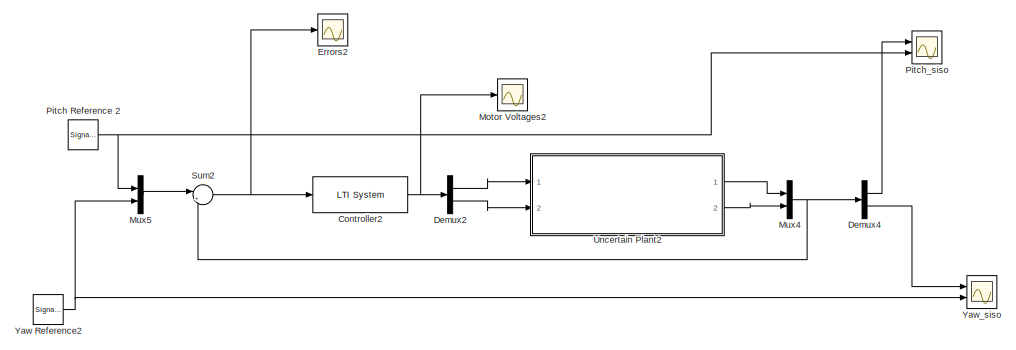
[diagram: root canvas - part 1/2, top right region]
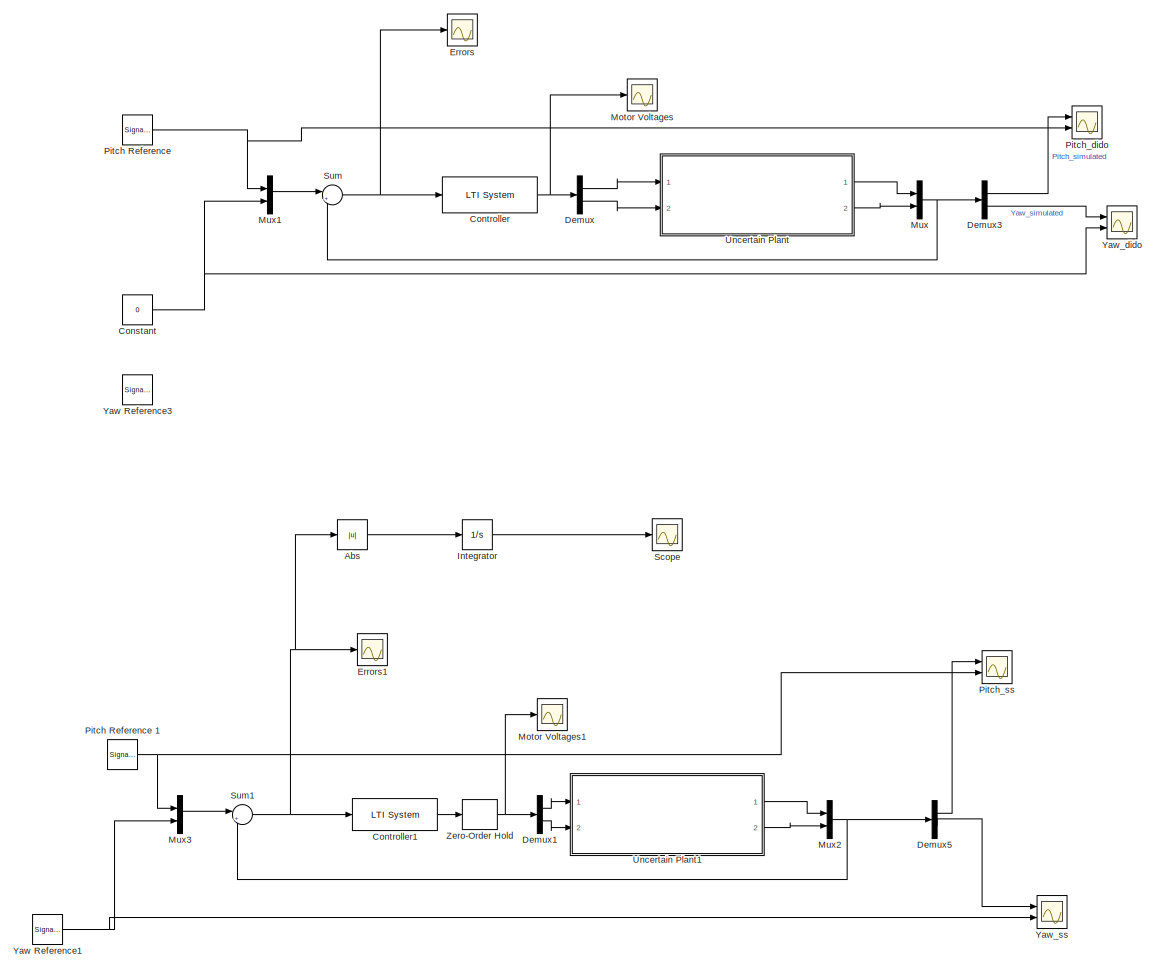
[diagram: root canvas - part 2/2, left side, full height]
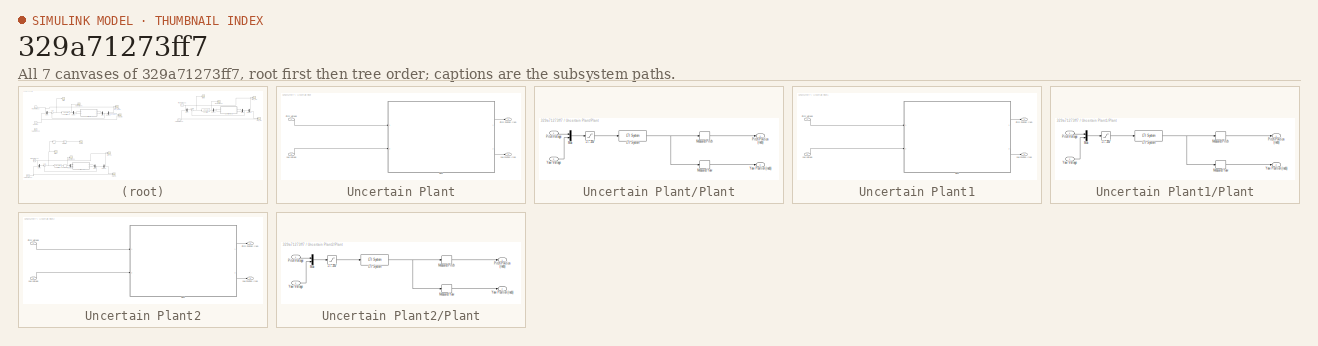
[diagram: thumbnail index - all 7 canvases of the model, root first then tree order]
MODEL slx_329a71273ff7
KIND model
CONFIG AbsTol = auto
CONFIG EnableMultiTasking = off
CONFIG FixedStep = auto
CONFIG MaxStep = auto
CONFIG MinStep = auto
CONFIG RelTol = 1e-3
CONFIG SampleTimeConstraint = Unconstrained
CONFIG Solver = VariableStepAuto
CONFIG SolverName = VariableStepAuto
CONFIG StartTime = 0.0
CONFIG StopTime = 60
BLOCK [Abs] Abs
  Commented = on
  SaturateOnIntegerOverflow = off
BLOCK [Constant] Constant
  Value = 0
BLOCK [Reference] Controller  REF=cstblocks/LTI System
  Ports = [1, 1]
  SourceBlock = cstblocks/LTI System
  SourceProductBaseCode = CT
  SourceProductName = Control System Toolbox
  SourceType = LTI Block
BLOCK [Reference] Controller1  REF=cstblocks/LTI System
  Commented = on
  Ports = [1, 1]
  SourceBlock = cstblocks/LTI System
  SourceProductBaseCode = CT
  SourceProductName = Control System Toolbox
  SourceType = LTI Block
BLOCK [Reference] Controller2  REF=cstblocks/LTI System
  Commented = on
  Ports = [1, 1]
  SourceBlock = cstblocks/LTI System
  SourceProductBaseCode = CT
  SourceProductName = Control System Toolbox
  SourceType = LTI Block
BLOCK [Demux] Demux
  DisplayOption = bar
  Outputs = 2
  Ports = [1, 2]
BLOCK [Demux] Demux1
  Commented = on
  DisplayOption = bar
  Outputs = 2
  Ports = [1, 2]
BLOCK [Demux] Demux2
  Commented = on
  DisplayOption = bar
  Outputs = 2
  Ports = [1, 2]
BLOCK [Demux] Demux3
  DisplayOption = bar
  Outputs = 2
  Ports = [1, 2]
BLOCK [Demux] Demux4
  Commented = on
  DisplayOption = bar
  Outputs = 2
  Ports = [1, 2]
BLOCK [Demux] Demux5
  Commented = on
  DisplayOption = bar
  Outputs = 2
  Ports = [1, 2]
BLOCK [Scope] Errors
  NumInputPorts = 1
  Ports = [1]
  ScopeSpecificationString = Simulink.scopes.TimeScopeBlockCfg('CurrentConfiguration', extmgr.ConfigurationSet(extmgr.Configuration('Core','General UI',true),extmgr.Configuration('Core','Source UI',true),extmgr.Configuration('Sources','WiredSimulink',true,'DataLoggingVariableName','Error','DataLogging',true,'DataLoggingSaveFormat','Array'),extmgr.Configuration('Visuals','Time Domain',true,'SerializedDisplays',{struct('MinYLim...<+1445ch>
BLOCK [Scope] Errors1
  Commented = on
  NumInputPorts = 1
  Ports = [1]
  ScopeSpecificationString = Simulink.scopes.TimeScopeBlockCfg('CurrentConfiguration', extmgr.ConfigurationSet(extmgr.Configuration('Core','General UI',true),extmgr.Configuration('Core','Source UI',true),extmgr.Configuration('Sources','WiredSimulink',true,'DataLoggingVariableName','ScopeData2','DataLogging',true,'DataLoggingSaveFormat','Array'),extmgr.Configuration('Visuals','Time Domain',true,'SerializedDisplays',{struct('Mi...<+1452ch>
BLOCK [Scope] Errors2
  Commented = on
  NumInputPorts = 1
  Ports = [1]
  ScopeSpecificationString = Simulink.scopes.TimeScopeBlockCfg('CurrentConfiguration', extmgr.ConfigurationSet(extmgr.Configuration('Core','General UI',true),extmgr.Configuration('Core','Source UI',true),extmgr.Configuration('Sources','WiredSimulink',true,'DataLoggingVariableName','ScopeData7','DataLogging',true,'DataLoggingSaveFormat','Array'),extmgr.Configuration('Visuals','Time Domain',true,'SerializedDisplays',{struct('Mi...<+1450ch>
BLOCK [Integrator] Integrator
  Commented = on
  Ports = [1, 1]
BLOCK [Scope] Motor Voltages
  NumInputPorts = 1
  Ports = [1]
  ScopeSpecificationString = Simulink.scopes.TimeScopeBlockCfg('CurrentConfiguration', extmgr.ConfigurationSet(extmgr.Configuration('Core','General UI',true),extmgr.Configuration('Core','Source UI',true),extmgr.Configuration('Sources','WiredSimulink',true,'DataLogging',true,'DataLoggingVariableName','MotorVolt','DataLoggingSaveFormat','Array'),extmgr.Configuration('Visuals','Time Domain',true,'SerializedDisplays',{struct('Min...<+1518ch>
BLOCK [Scope] Motor Voltages1
  Commented = on
  NumInputPorts = 1
  Ports = [1]
  ScopeSpecificationString = Simulink.scopes.TimeScopeBlockCfg('CurrentConfiguration', extmgr.ConfigurationSet(extmgr.Configuration('Core','General UI',true),extmgr.Configuration('Core','Source UI',true),extmgr.Configuration('Sources','WiredSimulink',true,'DataLogging',true,'DataLoggingVariableName','ScopeData3','DataLoggingSaveFormat','Array'),extmgr.Configuration('Visuals','Time Domain',true,'SerializedDisplays',{struct('Mi...<+1526ch>
BLOCK [Scope] Motor Voltages2
  Commented = on
  NumInputPorts = 1
  Ports = [1]
  ScopeSpecificationString = Simulink.scopes.TimeScopeBlockCfg('CurrentConfiguration', extmgr.ConfigurationSet(extmgr.Configuration('Core','General UI',true),extmgr.Configuration('Core','Source UI',true),extmgr.Configuration('Sources','WiredSimulink',true,'DataLogging',true,'DataLoggingVariableName','ScopeData8','DataLoggingSaveFormat','Array'),extmgr.Configuration('Visuals','Time Domain',true,'SerializedDisplays',{struct('Mi...<+1519ch>
BLOCK [Mux] Mux
  DisplayOption = bar
  Inputs = 2
  Ports = [2, 1]
BLOCK [Mux] Mux1
  DisplayOption = bar
  Inputs = 2
  Ports = [2, 1]
BLOCK [Mux] Mux2
  Commented = on
  DisplayOption = bar
  Inputs = 2
  Ports = [2, 1]
BLOCK [Mux] Mux3
  Commented = on
  DisplayOption = bar
  Inputs = 2
  Ports = [2, 1]
BLOCK [Mux] Mux4
  Commented = on
  DisplayOption = bar
  Inputs = 2
  Ports = [2, 1]
BLOCK [Mux] Mux5
  Commented = on
  DisplayOption = bar
  Inputs = 2
  Ports = [2, 1]
BLOCK [SignalGenerator] Pitch Reference
  Amplitude = pi/6
  Frequency = 0.4
  Ports = [0, 1]
  Units = rad/sec
  WaveForm = square
BLOCK [SignalGenerator] Pitch Reference 1
  Amplitude = pi/6
  Commented = on
  Frequency = 0.4
  Ports = [0, 1]
  Units = rad/sec
  WaveForm = square
BLOCK [SignalGenerator] Pitch Reference 2
  Amplitude = pi/6
  Commented = on
  Frequency = 0.4
  Ports = [0, 1]
  Units = rad/sec
  WaveForm = square
BLOCK [Scope] Pitch_dido
  NumInputPorts = 2
  Ports = [2]
  ScopeSpecificationString = Simulink.scopes.TimeScopeBlockCfg('CurrentConfiguration', extmgr.ConfigurationSet(extmgr.Configuration('Core','General UI',true,'FigureColor',[1 1 1]),extmgr.Configuration('Core','Source UI',true),extmgr.Configuration('Sources','WiredSimulink',true,'DataLoggingVariableName','ScopeData4','DataLogging',true,'DataLoggingSaveFormat','StructureWithTime'),extmgr.Configuration('Visuals','Time Domain',tru...<+1610ch>
BLOCK [Scope] Pitch_siso
  Commented = on
  NumInputPorts = 2
  Ports = [2]
  ScopeSpecificationString = Simulink.scopes.TimeScopeBlockCfg('CurrentConfiguration', extmgr.ConfigurationSet(extmgr.Configuration('Core','General UI',true),extmgr.Configuration('Core','Source UI',true),extmgr.Configuration('Sources','WiredSimulink',true,'DataLoggingVariableName','ScopeData6','DataLogging',true,'DataLoggingSaveFormat','StructureWithTime'),extmgr.Configuration('Visuals','Time Domain',true,'SerializedDisplays'...<+1478ch>
BLOCK [Scope] Pitch_ss
  Commented = on
  NumInputPorts = 2
  Ports = [2]
  ScopeSpecificationString = Simulink.scopes.TimeScopeBlockCfg('CurrentConfiguration', extmgr.ConfigurationSet(extmgr.Configuration('Core','General UI',true),extmgr.Configuration('Core','Source UI',true),extmgr.Configuration('Sources','WiredSimulink',true,'DataLoggingVariableName','ScopeData9','DataLogging',true,'DataLoggingSaveFormat','StructureWithTime'),extmgr.Configuration('Visuals','Time Domain',true,'SerializedDisplays'...<+1474ch>
BLOCK [Scope] Scope
  Commented = on
  NumInputPorts = 1
  Ports = [1]
  ScopeSpecificationString = Simulink.scopes.TimeScopeBlockCfg('CurrentConfiguration', extmgr.ConfigurationSet(extmgr.Configuration('Core','General UI',true),extmgr.Configuration('Core','Source UI',true),extmgr.Configuration('Sources','WiredSimulink',true,'DataLoggingVariableName','ScopeData1'),extmgr.Configuration('Visuals','Time Domain',true,'SerializedDisplays',{struct('MinYLimReal','-3.13389','MaxYLimReal','28.20502','YLa...<+1440ch>
BLOCK [Sum] Sum
  IconShape = round
  InputSameDT = off
  Inputs = |+-
  OutDataTypeStr = Inherit: Inherit via internal rule
  Ports = [2, 1]
  SaturateOnIntegerOverflow = off
BLOCK [Sum] Sum1
  Commented = on
  IconShape = round
  InputSameDT = off
  Inputs = |+-
  OutDataTypeStr = Inherit: Inherit via internal rule
  Ports = [2, 1]
  SaturateOnIntegerOverflow = off
BLOCK [Sum] Sum2
  Commented = on
  IconShape = round
  InputSameDT = off
  Inputs = |+-
  OutDataTypeStr = Inherit: Inherit via internal rule
  Ports = [2, 1]
  SaturateOnIntegerOverflow = off
BLOCK [SubSystem] Uncertain Plant
  Ports = [2, 2]
  RequestExecContextInheritance = off
  Variant = off
BLOCK [Outport] Uncertain Plant/Pitch Position (rad)
  IconDisplay = Port number
BLOCK [Inport] Uncertain Plant/Pitch Voltage
  IconDisplay = Port number
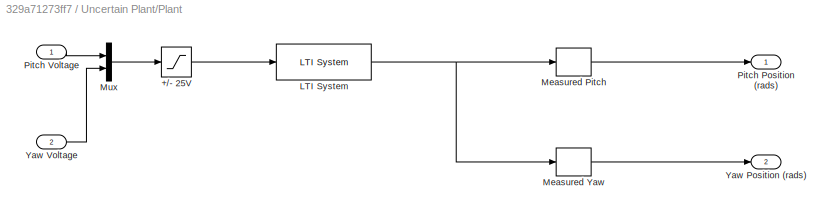
BLOCK [SubSystem] Uncertain Plant/Plant
  Ports = [2, 2]
  RequestExecContextInheritance = off
  Variant = off
BLOCK [Saturate] Uncertain Plant/Plant/+//- 25V
  InputPortMap = u0
  LowerLimit = -25
  Ports = [1, 1]
  UpperLimit = 25
BLOCK [Reference] Uncertain Plant/Plant/LTI System  REF=cstblocks/LTI System
  Ports = [1, 1]
  SourceBlock = cstblocks/LTI System
  SourceProductBaseCode = CT
  SourceProductName = Control System Toolbox
  SourceType = LTI Block
BLOCK [Selector] Uncertain Plant/Plant/Measured Pitch
  IndexOptions = Index vector (dialog)
  Indices = [1]
  InputPortWidth = 2
  OutputSizes = 1
  Ports = [1, 1]
BLOCK [Selector] Uncertain Plant/Plant/Measured Yaw
  IndexOptions = Index vector (dialog)
  Indices = [2]
  InputPortWidth = 2
  OutputSizes = 1
  Ports = [1, 1]
BLOCK [Mux] Uncertain Plant/Plant/Mux
  DisplayOption = bar
  Inputs = 2
  Ports = [2, 1]
BLOCK [Outport] Uncertain Plant/Plant/Pitch Position (rads)
  IconDisplay = Port number
BLOCK [Inport] Uncertain Plant/Plant/Pitch Voltage
  IconDisplay = Port number
BLOCK [Outport] Uncertain Plant/Plant/Yaw Position (rads)
  IconDisplay = Port number
  Port = 2
BLOCK [Inport] Uncertain Plant/Plant/Yaw Voltage
  IconDisplay = Port number
  Port = 2
BLOCK [Outport] Uncertain Plant/Yaw Position (rad)
  IconDisplay = Port number
  Port = 2
BLOCK [Inport] Uncertain Plant/Yaw Voltage
  IconDisplay = Port number
  Port = 2
BLOCK [SubSystem] Uncertain Plant1
  Commented = on
  Ports = [2, 2]
  RequestExecContextInheritance = off
  Variant = off
BLOCK [Outport] Uncertain Plant1/Pitch Position (rad)
  IconDisplay = Port number
BLOCK [Inport] Uncertain Plant1/Pitch Voltage
  IconDisplay = Port number
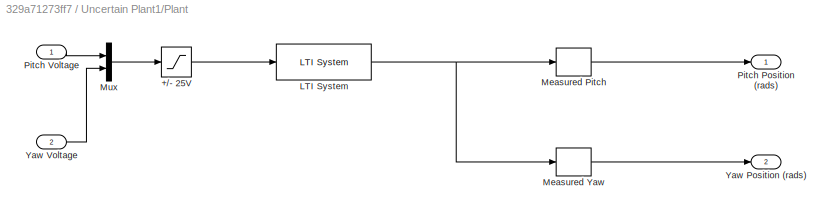
BLOCK [SubSystem] Uncertain Plant1/Plant
  Ports = [2, 2]
  RequestExecContextInheritance = off
  Variant = off
BLOCK [Saturate] Uncertain Plant1/Plant/+//- 25V
  InputPortMap = u0
  LowerLimit = -25
  Ports = [1, 1]
  UpperLimit = 25
BLOCK [Reference] Uncertain Plant1/Plant/LTI System  REF=cstblocks/LTI System
  Ports = [1, 1]
  SourceBlock = cstblocks/LTI System
  SourceProductBaseCode = CT
  SourceProductName = Control System Toolbox
  SourceType = LTI Block
BLOCK [Selector] Uncertain Plant1/Plant/Measured Pitch
  IndexOptions = Index vector (dialog)
  Indices = [1]
  InputPortWidth = 2
  OutputSizes = 1
  Ports = [1, 1]
BLOCK [Selector] Uncertain Plant1/Plant/Measured Yaw
  IndexOptions = Index vector (dialog)
  Indices = [2]
  InputPortWidth = 2
  OutputSizes = 1
  Ports = [1, 1]
BLOCK [Mux] Uncertain Plant1/Plant/Mux
  DisplayOption = bar
  Inputs = 2
  Ports = [2, 1]
BLOCK [Outport] Uncertain Plant1/Plant/Pitch Position (rads)
  IconDisplay = Port number
BLOCK [Inport] Uncertain Plant1/Plant/Pitch Voltage
  IconDisplay = Port number
BLOCK [Outport] Uncertain Plant1/Plant/Yaw Position (rads)
  IconDisplay = Port number
  Port = 2
BLOCK [Inport] Uncertain Plant1/Plant/Yaw Voltage
  IconDisplay = Port number
  Port = 2
BLOCK [Outport] Uncertain Plant1/Yaw Position (rad)
  IconDisplay = Port number
  Port = 2
BLOCK [Inport] Uncertain Plant1/Yaw Voltage
  IconDisplay = Port number
  Port = 2
BLOCK [SubSystem] Uncertain Plant2
  Commented = on
  Ports = [2, 2]
  RequestExecContextInheritance = off
  Variant = off
BLOCK [Outport] Uncertain Plant2/Pitch Position (rad)
  IconDisplay = Port number
BLOCK [Inport] Uncertain Plant2/Pitch Voltage
  IconDisplay = Port number
BLOCK [SubSystem] Uncertain Plant2/Plant
  Ports = [2, 2]
  RequestExecContextInheritance = off
  Variant = off
BLOCK [Saturate] Uncertain Plant2/Plant/+//- 25V
  InputPortMap = u0
  LowerLimit = -25
  Ports = [1, 1]
  UpperLimit = 25
BLOCK [Reference] Uncertain Plant2/Plant/LTI System  REF=cstblocks/LTI System
  Ports = [1, 1]
  SourceBlock = cstblocks/LTI System
  SourceProductBaseCode = CT
  SourceProductName = Control System Toolbox
  SourceType = LTI Block
BLOCK [Selector] Uncertain Plant2/Plant/Measured Pitch
  IndexOptions = Index vector (dialog)
  Indices = [1]
  InputPortWidth = 2
  OutputSizes = 1
  Ports = [1, 1]
BLOCK [Selector] Uncertain Plant2/Plant/Measured Yaw
  IndexOptions = Index vector (dialog)
  Indices = [2]
  InputPortWidth = 2
  OutputSizes = 1
  Ports = [1, 1]
BLOCK [Mux] Uncertain Plant2/Plant/Mux
  DisplayOption = bar
  Inputs = 2
  Ports = [2, 1]
BLOCK [Outport] Uncertain Plant2/Plant/Pitch Position (rads)
  IconDisplay = Port number
BLOCK [Inport] Uncertain Plant2/Plant/Pitch Voltage
  IconDisplay = Port number
BLOCK [Outport] Uncertain Plant2/Plant/Yaw Position (rads)
  IconDisplay = Port number
  Port = 2
BLOCK [Inport] Uncertain Plant2/Plant/Yaw Voltage
  IconDisplay = Port number
  Port = 2
BLOCK [Outport] Uncertain Plant2/Yaw Position (rad)
  IconDisplay = Port number
  Port = 2
BLOCK [Inport] Uncertain Plant2/Yaw Voltage
  IconDisplay = Port number
  Port = 2
BLOCK [SignalGenerator] Yaw Reference1
  Amplitude = pi/4
  Commented = on
  Frequency = 0.5
  Ports = [0, 1]
  Units = rad/sec
  WaveForm = square
BLOCK [SignalGenerator] Yaw Reference2
  Amplitude = pi/4
  Commented = on
  Frequency = 0.5
  Ports = [0, 1]
  Units = rad/sec
  WaveForm = square
BLOCK [SignalGenerator] Yaw Reference3
  Amplitude = pi/4
  Frequency = 0.5
  Ports = [0, 1]
  Units = rad/sec
  WaveForm = square
BLOCK [Scope] Yaw_dido
  NumInputPorts = 2
  Ports = [2]
  ScopeSpecificationString = Simulink.scopes.TimeScopeBlockCfg('CurrentConfiguration', extmgr.ConfigurationSet(extmgr.Configuration('Core','General UI',true,'FigureColor',[1 1 1]),extmgr.Configuration('Core','Source UI',true),extmgr.Configuration('Sources','WiredSimulink',true,'DataLoggingVariableName','Angles','DataLogging',true,'DataLoggingSaveFormat','StructureWithTime'),extmgr.Configuration('Visuals','Time Domain',true,'S...<+1599ch>
BLOCK [Scope] Yaw_siso
  Commented = on
  NumInputPorts = 2
  Ports = [2]
  ScopeSpecificationString = Simulink.scopes.TimeScopeBlockCfg('CurrentConfiguration', extmgr.ConfigurationSet(extmgr.Configuration('Core','General UI',true),extmgr.Configuration('Core','Source UI',true),extmgr.Configuration('Sources','WiredSimulink',true,'DataLoggingVariableName','ScopeData5','DataLogging',true,'DataLoggingSaveFormat','StructureWithTime'),extmgr.Configuration('Visuals','Time Domain',true,'SerializedDisplays'...<+1473ch>
BLOCK [Scope] Yaw_ss
  Commented = on
  NumInputPorts = 2
  Ports = [2]
  ScopeSpecificationString = Simulink.scopes.TimeScopeBlockCfg('CurrentConfiguration', extmgr.ConfigurationSet(extmgr.Configuration('Core','General UI',true),extmgr.Configuration('Core','Source UI',true),extmgr.Configuration('Sources','WiredSimulink',true,'DataLoggingVariableName','ScopeData10','DataLogging',true,'DataLoggingSaveFormat','StructureWithTime'),extmgr.Configuration('Visuals','Time Domain',true,'SerializedDisplays...<+1476ch>
BLOCK [ZeroOrderHold] Zero-Order Hold
  Commented = on
  SampleTime = 0.002
LINE Abs:1 -> Integrator:1
NET Constant:1 -> Mux1:2, Yaw_dido:2
LINE Controller1:1 -> Zero-Order Hold:1
NET Controller2:1 -> Demux2:1, Motor Voltages2:1
NET Controller:1 -> Demux:1, Motor Voltages:1
LINE Demux1:1 -> Uncertain Plant1:1
LINE Demux1:2 -> Uncertain Plant1:2
LINE Demux2:1 -> Uncertain Plant2:1
LINE Demux2:2 -> Uncertain Plant2:2
LINE Demux3:1 -> Pitch_dido:1
LINE Demux3:2 -> Yaw_dido:1
LINE Demux4:1 -> Pitch_siso:1
LINE Demux4:2 -> Yaw_siso:1
LINE Demux5:1 -> Pitch_ss:1
LINE Demux5:2 -> Yaw_ss:1
LINE Demux:1 -> Uncertain Plant:1
LINE Demux:2 -> Uncertain Plant:2
LINE Integrator:1 -> Scope:1
LINE Mux1:1 -> Sum:1
NET Mux2:1 -> Demux5:1, Sum1:2
LINE Mux3:1 -> Sum1:1
NET Mux4:1 -> Demux4:1, Sum2:2
LINE Mux5:1 -> Sum2:1
NET Mux:1 -> Demux3:1, Sum:2
NET Pitch Reference 1:1 -> Mux3:1, Pitch_ss:2
NET Pitch Reference 2:1 -> Mux5:1, Pitch_siso:2
NET Pitch Reference:1 -> Mux1:1, Pitch_dido:2
NET Sum1:1 -> Abs:1, Controller1:1, Errors1:1
NET Sum2:1 -> Controller2:1, Errors2:1
NET Sum:1 -> Controller:1, Errors:1
LINE Uncertain Plant/Pitch Voltage:1 -> Uncertain Plant/Plant:1
LINE Uncertain Plant/Plant/+//- 25V:1 -> Uncertain Plant/Plant/LTI System:1
NET Uncertain Plant/Plant/LTI System:1 -> Uncertain Plant/Plant/Measured Pitch:1, Uncertain Plant/Plant/Measured Yaw:1
LINE Uncertain Plant/Plant/Measured Pitch:1 -> Uncertain Plant/Plant/Pitch Position (rads):1
LINE Uncertain Plant/Plant/Measured Yaw:1 -> Uncertain Plant/Plant/Yaw Position (rads):1
LINE Uncertain Plant/Plant/Mux:1 -> Uncertain Plant/Plant/+//- 25V:1
LINE Uncertain Plant/Plant/Pitch Voltage:1 -> Uncertain Plant/Plant/Mux:1
LINE Uncertain Plant/Plant/Yaw Voltage:1 -> Uncertain Plant/Plant/Mux:2
LINE Uncertain Plant/Plant:1 -> Uncertain Plant/Pitch Position (rad):1
LINE Uncertain Plant/Plant:2 -> Uncertain Plant/Yaw Position (rad):1
LINE Uncertain Plant/Yaw Voltage:1 -> Uncertain Plant/Plant:2
LINE Uncertain Plant1/Pitch Voltage:1 -> Uncertain Plant1/Plant:1
LINE Uncertain Plant1/Plant/+//- 25V:1 -> Uncertain Plant1/Plant/LTI System:1
NET Uncertain Plant1/Plant/LTI System:1 -> Uncertain Plant1/Plant/Measured Pitch:1, Uncertain Plant1/Plant/Measured Yaw:1
LINE Uncertain Plant1/Plant/Measured Pitch:1 -> Uncertain Plant1/Plant/Pitch Position (rads):1
LINE Uncertain Plant1/Plant/Measured Yaw:1 -> Uncertain Plant1/Plant/Yaw Position (rads):1
LINE Uncertain Plant1/Plant/Mux:1 -> Uncertain Plant1/Plant/+//- 25V:1
LINE Uncertain Plant1/Plant/Pitch Voltage:1 -> Uncertain Plant1/Plant/Mux:1
LINE Uncertain Plant1/Plant/Yaw Voltage:1 -> Uncertain Plant1/Plant/Mux:2
LINE Uncertain Plant1/Plant:1 -> Uncertain Plant1/Pitch Position (rad):1
LINE Uncertain Plant1/Plant:2 -> Uncertain Plant1/Yaw Position (rad):1
LINE Uncertain Plant1/Yaw Voltage:1 -> Uncertain Plant1/Plant:2
LINE Uncertain Plant1:1 -> Mux2:1
LINE Uncertain Plant1:2 -> Mux2:2
LINE Uncertain Plant2/Pitch Voltage:1 -> Uncertain Plant2/Plant:1
LINE Uncertain Plant2/Plant/+//- 25V:1 -> Uncertain Plant2/Plant/LTI System:1
NET Uncertain Plant2/Plant/LTI System:1 -> Uncertain Plant2/Plant/Measured Pitch:1, Uncertain Plant2/Plant/Measured Yaw:1
LINE Uncertain Plant2/Plant/Measured Pitch:1 -> Uncertain Plant2/Plant/Pitch Position (rads):1
LINE Uncertain Plant2/Plant/Measured Yaw:1 -> Uncertain Plant2/Plant/Yaw Position (rads):1
LINE Uncertain Plant2/Plant/Mux:1 -> Uncertain Plant2/Plant/+//- 25V:1
LINE Uncertain Plant2/Plant/Pitch Voltage:1 -> Uncertain Plant2/Plant/Mux:1
LINE Uncertain Plant2/Plant/Yaw Voltage:1 -> Uncertain Plant2/Plant/Mux:2
LINE Uncertain Plant2/Plant:1 -> Uncertain Plant2/Pitch Position (rad):1
LINE Uncertain Plant2/Plant:2 -> Uncertain Plant2/Yaw Position (rad):1
LINE Uncertain Plant2/Yaw Voltage:1 -> Uncertain Plant2/Plant:2
LINE Uncertain Plant2:1 -> Mux4:1
LINE Uncertain Plant2:2 -> Mux4:2
LINE Uncertain Plant:1 -> Mux:1
LINE Uncertain Plant:2 -> Mux:2
NET Yaw Reference1:1 -> Mux3:2, Yaw_ss:2
NET Yaw Reference2:1 -> Mux5:2, Yaw_siso:2
NET Zero-Order Hold:1 -> Demux1:1, Motor Voltages1:1
note: NET lines group one-source signal fan-out (src -> all destinations, sorted); 1:1 wires keep LINE
